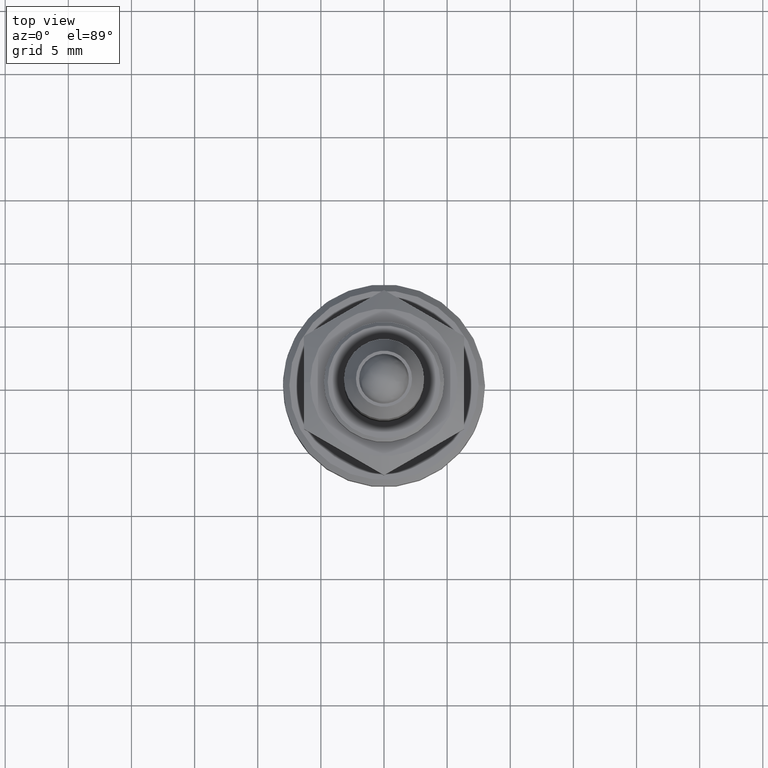
[diagram: clean part render]
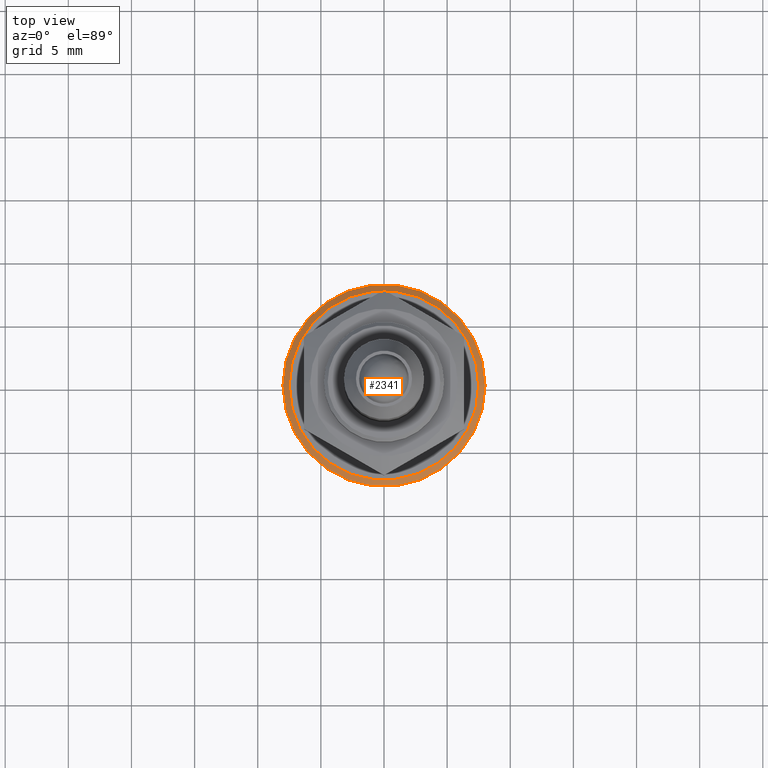
[diagram: same view with one face highlighted and labeled with its STEP entity id]
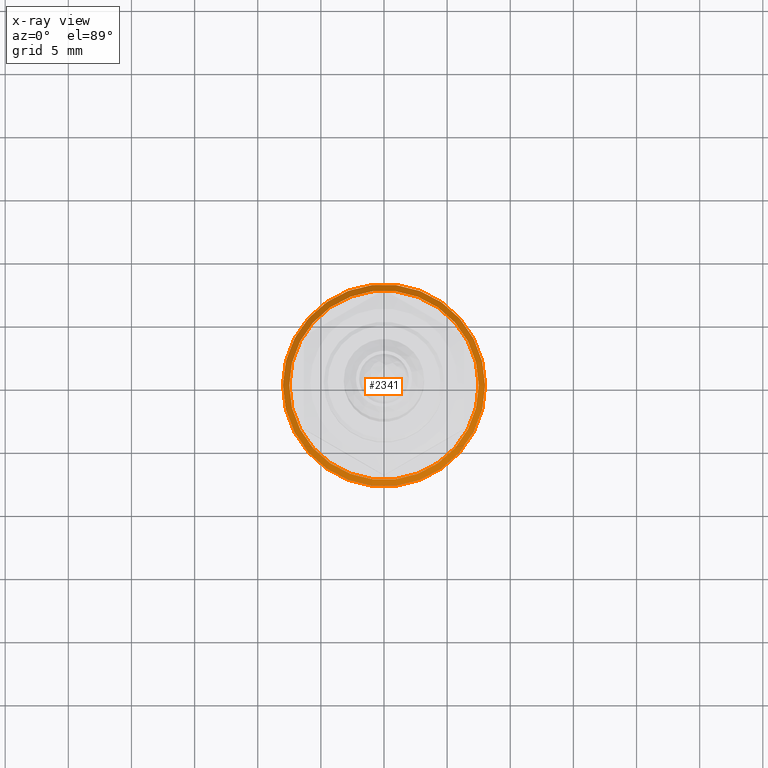
[diagram: x-ray of the same camera — body ghosted, the highlighted face saturated]
A machine part, top view. The second image highlights one B-rep face of the part: STEP entity #2341.
The next image is the same camera in x-ray: the body ghosted, the highlighted face saturated — about 0% of this face is hidden behind the body in this view.
In plain terms, the highlighted conical surface has half-angle 45 deg.
Its self-contained STEP definition (entity closure, byte-faithful):
#207 = AXIS2_PLACEMENT_3D ( 'NONE', #2217, #1609, #1419 ) ;
#229 = CARTESIAN_POINT ( 'NONE',  ( 0.000000000000000000, 0.000000000000000000, -32.32999999999998408 ) ) ;
#315 = DIRECTION ( 'NONE',  ( 0.000000000000000000, 0.000000000000000000, 1.000000000000000000 ) ) ;
#479 = CARTESIAN_POINT ( 'NONE',  ( 7.500000000000020428, 0.000000000000000000, -31.82999999999999829 ) ) ;
#530 = EDGE_CURVE ( 'NONE', #1326, #1326, #1384, .T. ) ;
#637 = FACE_BOUND ( 'NONE', #1856, .T. ) ;
#695 = CIRCLE ( 'NONE', #1600, 7.500000000000020428 ) ;
#831 = EDGE_LOOP ( 'NONE', ( #2193 ) ) ;
#850 = AXIS2_PLACEMENT_3D ( 'NONE', #229, #1604, #1012 ) ;
#903 = DIRECTION ( 'NONE',  ( 1.000000000000000000, 0.000000000000000000, 0.000000000000000000 ) ) ;
#965 = ORIENTED_EDGE ( 'NONE', *, *, #1628, .F. ) ;
#1012 = DIRECTION ( 'NONE',  ( 1.000000000000000000, 0.000000000000000000, 0.000000000000000000 ) ) ;
#1218 = FACE_OUTER_BOUND ( 'NONE', #831, .T. ) ;
#1326 = VERTEX_POINT ( 'NONE', #2097 ) ;
#1384 = CIRCLE ( 'NONE', #850, 8.000000000000000000 ) ;
#1419 = DIRECTION ( 'NONE',  ( -1.000000000000000000, 0.000000000000000000, 0.000000000000000000 ) ) ;
#1471 = CARTESIAN_POINT ( 'NONE',  ( 0.000000000000000000, 0.000000000000000000, -31.82999999999999829 ) ) ;
#1600 = AXIS2_PLACEMENT_3D ( 'NONE', #1471, #315, #903 ) ;
#1604 = DIRECTION ( 'NONE',  ( 0.000000000000000000, 0.000000000000000000, -1.000000000000000000 ) ) ;
#1609 = DIRECTION ( 'NONE',  ( 0.000000000000000000, 0.000000000000000000, -1.000000000000000000 ) ) ;
#1628 = EDGE_CURVE ( 'NONE', #2179, #2179, #695, .T. ) ;
#1633 = CONICAL_SURFACE ( 'NONE', #207, 7.500000000000020428, 0.7853981633974415066 ) ;
#1856 = EDGE_LOOP ( 'NONE', ( #965 ) ) ;
#2097 = CARTESIAN_POINT ( 'NONE',  ( 8.000000000000000000, 0.000000000000000000, -32.32999999999998408 ) ) ;
#2179 = VERTEX_POINT ( 'NONE', #479 ) ;
#2193 = ORIENTED_EDGE ( 'NONE', *, *, #530, .F. ) ;
#2217 = CARTESIAN_POINT ( 'NONE',  ( 0.000000000000000000, 0.000000000000000000, -31.82999999999999829 ) ) ;
#2341 = ADVANCED_FACE ( 'NONE', ( #1218, #637 ), #1633, .T. ) ;